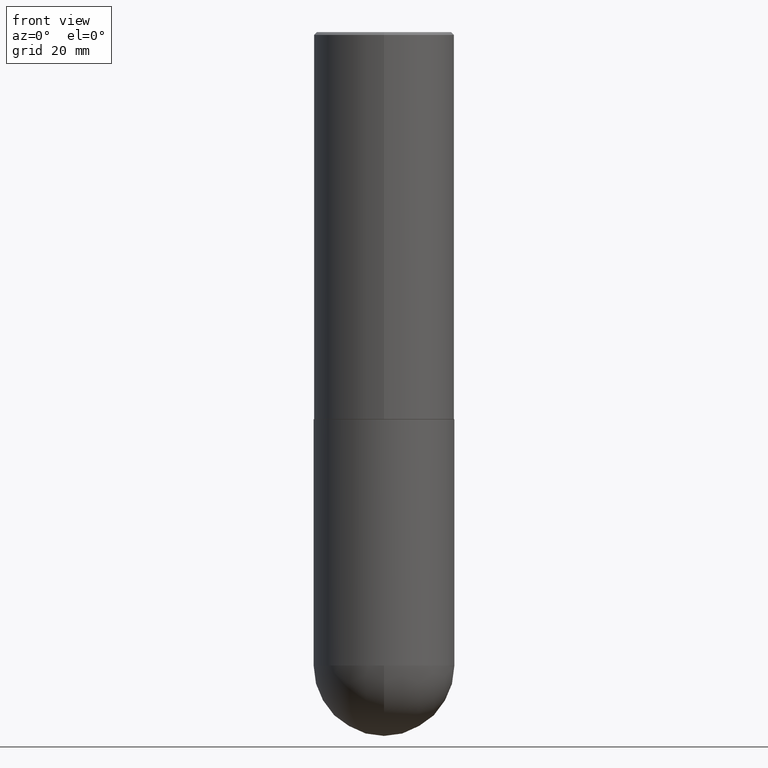
[diagram: clean part render]
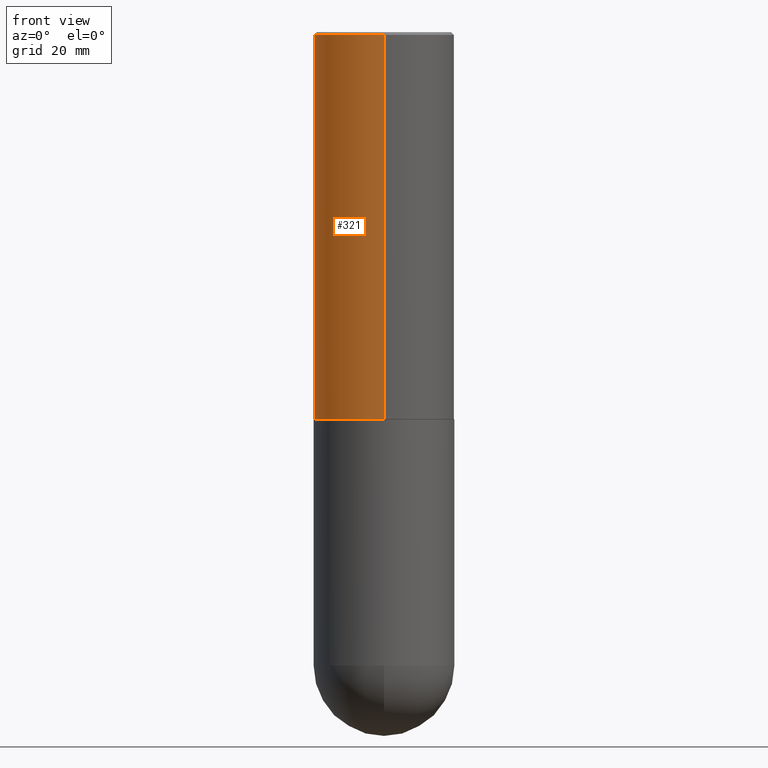
[diagram: same view with one face highlighted and labeled with its STEP entity id]
A machine part, front view. The second image highlights one B-rep face of the part: STEP entity #321.
In plain terms, the highlighted cylindrical surface (partial cylindrical patch) has radius 12.7 mm, axis along (-0, 0, 1).
Its self-contained STEP definition (entity closure, byte-faithful):
#3 = DIRECTION ( 'NONE',  ( -2.445544383253700702E-29, 3.491373108179382004E-15, 1.000000000000000000 ) ) ;
#9 = VECTOR ( 'NONE', #378, 39.37007874015748143 ) ;
#14 = CIRCLE ( 'NONE', #255, 0.4999999999999999445 ) ;
#15 = VERTEX_POINT ( 'NONE', #285 ) ;
#26 = CARTESIAN_POINT ( 'NONE',  ( 6.722801509564422715E-29, -9.597784674385121064E-15, -2.749000000000000110 ) ) ;
#33 = CARTESIAN_POINT ( 'NONE',  ( 4.891088766507428205E-31, -6.982746216358801726E-17, -0.02000000000000010797 ) ) ;
#36 = FACE_OUTER_BOUND ( 'NONE', #265, .T. ) ;
#41 = DIRECTION ( 'NONE',  ( -6.982962677686265922E-15, -1.000000000000000000, 3.491643216902136802E-15 ) ) ;
#42 = ORIENTED_EDGE ( 'NONE', *, *, #362, .T. ) ;
#43 = DIRECTION ( 'NONE',  ( -2.445544383253700983E-29, 3.491373108179382004E-15, 1.000000000000000000 ) ) ;
#60 = AXIS2_PLACEMENT_3D ( 'NONE', #242, #92, #178 ) ;
#66 = LINE ( 'NONE', #254, #9 ) ;
#78 = EDGE_CURVE ( 'NONE', #141, #15, #358, .T. ) ;
#92 = DIRECTION ( 'NONE',  ( -2.445544383253700702E-29, 3.491373108179382004E-15, 1.000000000000000000 ) ) ;
#134 = CARTESIAN_POINT ( 'NONE',  ( 3.552713678800536428E-15, 0.4999999999999907296, -2.749000000000001886 ) ) ;
#141 = VERTEX_POINT ( 'NONE', #134 ) ;
#160 = CARTESIAN_POINT ( 'NONE',  ( -3.430248998885764598E-15, -0.5000000000000000000, -0.01999999999999835937 ) ) ;
#178 = DIRECTION ( 'NONE',  ( -6.982962677686265922E-15, -1.000000000000000000, 3.491373108179382399E-15 ) ) ;
#191 = VERTEX_POINT ( 'NONE', #408 ) ;
#206 = CIRCLE ( 'NONE', #369, 0.5000000000000003331 ) ;
#239 = ORIENTED_EDGE ( 'NONE', *, *, #78, .F. ) ;
#242 = CARTESIAN_POINT ( 'NONE',  ( 0.000000000000000000, 0.000000000000000000, 0.000000000000000000 ) ) ;
#253 = VERTEX_POINT ( 'NONE', #160 ) ;
#254 = CARTESIAN_POINT ( 'NONE',  ( -3.491481338843133750E-15, -0.5000000000000001110, 1.745686554089691594E-15 ) ) ;
#255 = AXIS2_PLACEMENT_3D ( 'NONE', #33, #3, #41 ) ;
#259 = DIRECTION ( 'NONE',  ( -2.445544383253700702E-29, 3.491373108179382004E-15, 1.000000000000000000 ) ) ;
#265 = EDGE_LOOP ( 'NONE', ( #239, #42, #410, #391 ) ) ;
#269 = CARTESIAN_POINT ( 'NONE',  ( 3.552713678800501718E-15, 0.5000000000000001110, -1.745686554089691594E-15 ) ) ;
#273 = EDGE_CURVE ( 'NONE', #191, #253, #66, .T. ) ;
#285 = CARTESIAN_POINT ( 'NONE',  ( 3.491481338843132961E-15, 0.4999999999999998335, -0.02000000000000185310 ) ) ;
#302 = DIRECTION ( 'NONE',  ( -6.982962677686265922E-15, -1.000000000000000000, 3.278217592397113496E-15 ) ) ;
#317 = CYLINDRICAL_SURFACE ( 'NONE', #60, 0.5000000000000001110 ) ;
#318 = VECTOR ( 'NONE', #43, 39.37007874015748143 ) ;
#321 = ADVANCED_FACE ( 'NONE', ( #36 ), #317, .T. ) ;
#352 = EDGE_CURVE ( 'NONE', #15, #253, #14, .T. ) ;
#358 = LINE ( 'NONE', #269, #318 ) ;
#362 = EDGE_CURVE ( 'NONE', #141, #191, #206, .T. ) ;
#369 = AXIS2_PLACEMENT_3D ( 'NONE', #26, #259, #302 ) ;
#378 = DIRECTION ( 'NONE',  ( -2.445544383253700983E-29, 3.491373108179382004E-15, 1.000000000000000000 ) ) ;
#391 = ORIENTED_EDGE ( 'NONE', *, *, #352, .F. ) ;
#408 = CARTESIAN_POINT ( 'NONE',  ( -3.491481338843067880E-15, -0.5000000000000099920, -2.748999999999998334 ) ) ;
#410 = ORIENTED_EDGE ( 'NONE', *, *, #273, .T. ) ;